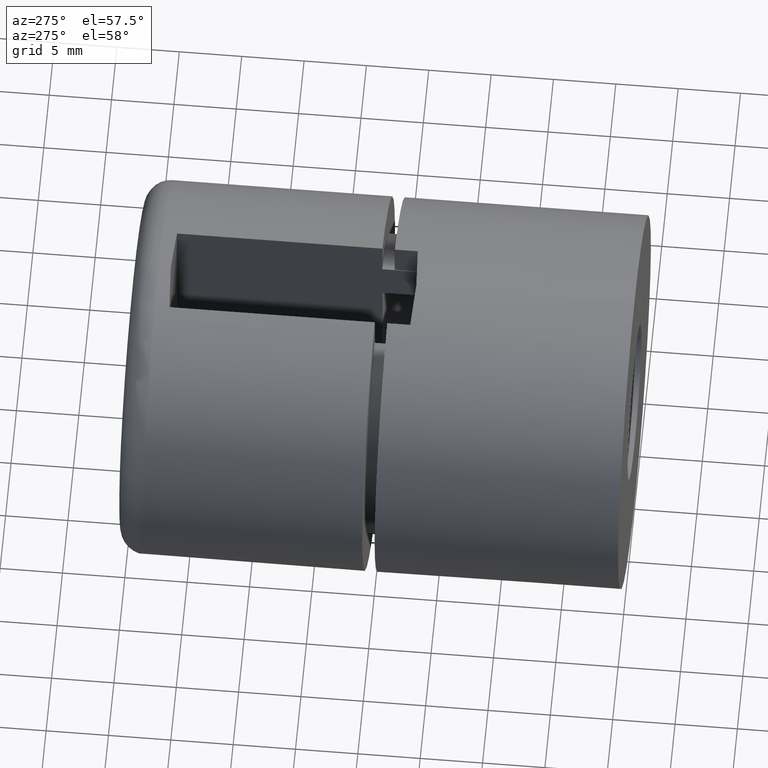
[diagram: clean part render]
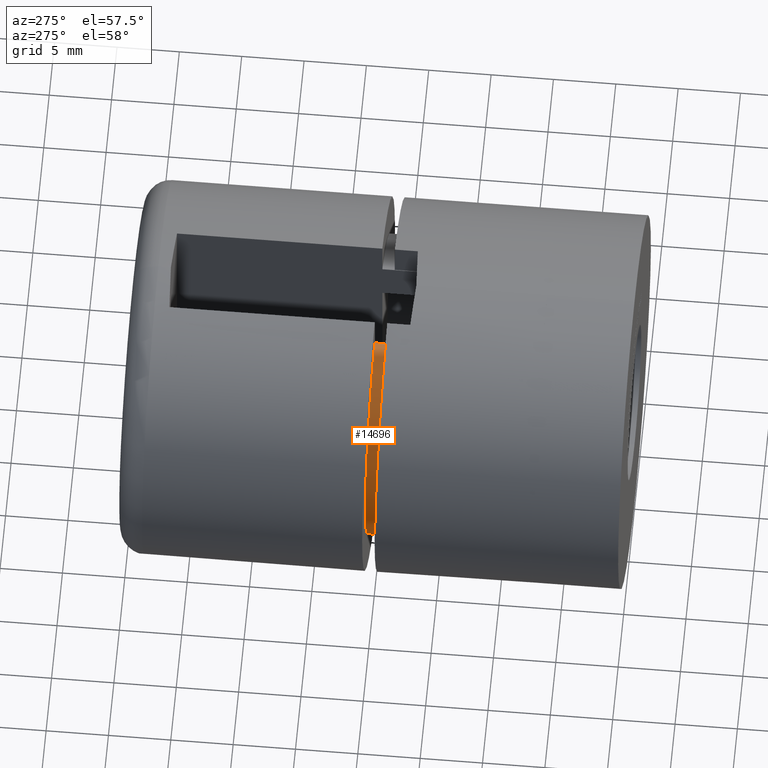
[diagram: same view with one face highlighted and labeled with its STEP entity id]
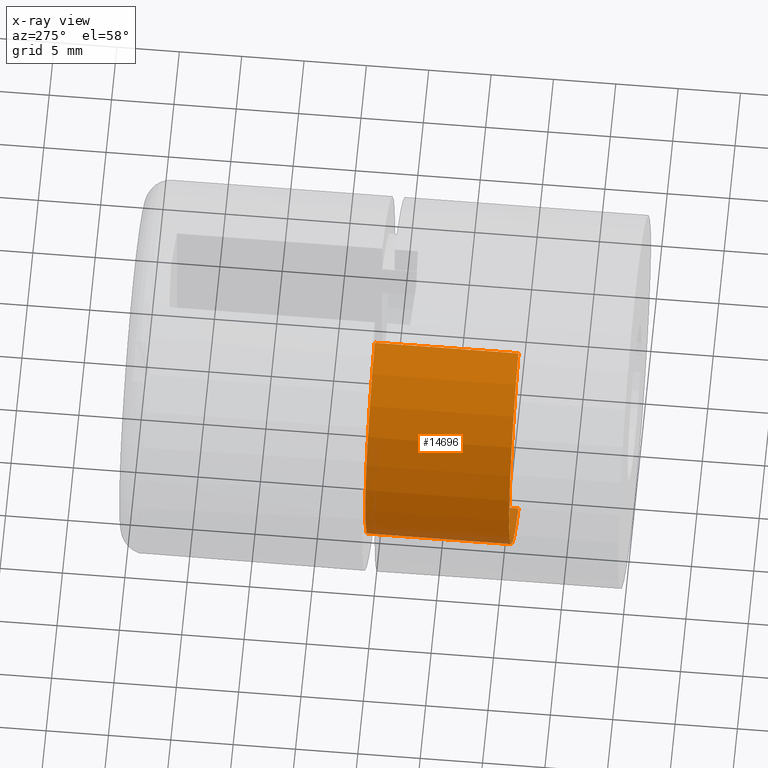
[diagram: x-ray of the same camera — body ghosted, the highlighted face saturated]
A machine part, auxiliary view. The second image highlights one B-rep face of the part: STEP entity #14696.
The next image is the same camera in x-ray: the body ghosted, the highlighted face saturated — about 3% of this face is hidden behind the body in this view.
In plain terms, the highlighted cylindrical surface (partial cylindrical patch) has radius 12.05 mm, axis along (-0, 1, 0).
Its self-contained STEP definition (entity closure, byte-faithful):
#935 = AXIS2_PLACEMENT_3D ( 'NONE', #8090, #2757, #9364 ) ;
#957 = LINE ( 'NONE', #13611, #11056 ) ;
#1478 = EDGE_CURVE ( 'NONE', #14065, #12598, #4794, .T. ) ;
#1579 = CARTESIAN_POINT ( 'NONE',  ( -3.500000000000000900, 33.68000000000000000, -11.53050302458656700 ) ) ;
#2058 = DIRECTION ( 'NONE',  ( 0.0000000000000000000, 1.000000000000000000, 0.0000000000000000000 ) ) ;
#2304 = EDGE_CURVE ( 'NONE', #12154, #14065, #9007, .T. ) ;
#2664 = VERTEX_POINT ( 'NONE', #9598 ) ;
#2708 = CARTESIAN_POINT ( 'NONE',  ( 0.0000000000000000000, 33.68000000000000000, 0.0000000000000000000 ) ) ;
#2757 = DIRECTION ( 'NONE',  ( 0.0000000000000000000, 1.000000000000000000, 0.0000000000000000000 ) ) ;
#2831 = ORIENTED_EDGE ( 'NONE', *, *, #2304, .T. ) ;
#3405 = FACE_OUTER_BOUND ( 'NONE', #9505, .T. ) ;
#3415 = CIRCLE ( 'NONE', #4919, 12.05000000000000100 ) ;
#4125 = DIRECTION ( 'NONE',  ( -0.0000000000000000000, -1.000000000000000000, -0.0000000000000000000 ) ) ;
#4415 = CARTESIAN_POINT ( 'NONE',  ( -3.499999999999998700, 21.14999999999999900, 11.53050302458657100 ) ) ;
#4794 = CIRCLE ( 'NONE', #935, 12.05000000000000100 ) ;
#4919 = AXIS2_PLACEMENT_3D ( 'NONE', #14366, #9019, #6569 ) ;
#6042 = CARTESIAN_POINT ( 'NONE',  ( -3.500000000000000900, 21.14999999999999900, -11.53050302458656900 ) ) ;
#6156 = EDGE_CURVE ( 'NONE', #12598, #2664, #957, .T. ) ;
#6569 = DIRECTION ( 'NONE',  ( 0.0000000000000000000, 0.0000000000000000000, 1.000000000000000000 ) ) ;
#6962 = ORIENTED_EDGE ( 'NONE', *, *, #13443, .T. ) ;
#7477 = CYLINDRICAL_SURFACE ( 'NONE', #7642, 12.05000000000000100 ) ;
#7642 = AXIS2_PLACEMENT_3D ( 'NONE', #2708, #9145, #10535 ) ;
#8090 = CARTESIAN_POINT ( 'NONE',  ( 0.0000000000000000000, 21.14999999999999900, 0.0000000000000000000 ) ) ;
#8263 = CARTESIAN_POINT ( 'NONE',  ( -3.500000000000000900, 32.68000000000002800, -11.53050302458656700 ) ) ;
#8392 = ORIENTED_EDGE ( 'NONE', *, *, #6156, .T. ) ;
#8647 = VECTOR ( 'NONE', #4125, 1000.000000000000000 ) ;
#9007 = LINE ( 'NONE', #1579, #8647 ) ;
#9019 = DIRECTION ( 'NONE',  ( 0.0000000000000000000, -1.000000000000000000, 0.0000000000000000000 ) ) ;
#9145 = DIRECTION ( 'NONE',  ( -0.0000000000000000000, -1.000000000000000000, -0.0000000000000000000 ) ) ;
#9364 = DIRECTION ( 'NONE',  ( 0.0000000000000000000, 0.0000000000000000000, 1.000000000000000000 ) ) ;
#9505 = EDGE_LOOP ( 'NONE', ( #8392, #6962, #2831, #15912 ) ) ;
#9598 = CARTESIAN_POINT ( 'NONE',  ( -3.499999999999998200, 32.68000000000002800, 11.53050302458656700 ) ) ;
#10535 = DIRECTION ( 'NONE',  ( 0.0000000000000000000, 0.0000000000000000000, -1.000000000000000000 ) ) ;
#11056 = VECTOR ( 'NONE', #2058, 1000.000000000000000 ) ;
#12154 = VERTEX_POINT ( 'NONE', #8263 ) ;
#12598 = VERTEX_POINT ( 'NONE', #4415 ) ;
#13443 = EDGE_CURVE ( 'NONE', #2664, #12154, #3415, .T. ) ;
#13611 = CARTESIAN_POINT ( 'NONE',  ( -3.499999999999998200, 33.68000000000000000, 11.53050302458656700 ) ) ;
#14065 = VERTEX_POINT ( 'NONE', #6042 ) ;
#14366 = CARTESIAN_POINT ( 'NONE',  ( 0.0000000000000000000, 32.68000000000002800, 0.0000000000000000000 ) ) ;
#14696 = ADVANCED_FACE ( 'NONE', ( #3405 ), #7477, .T. ) ;
#15912 = ORIENTED_EDGE ( 'NONE', *, *, #1478, .T. ) ;